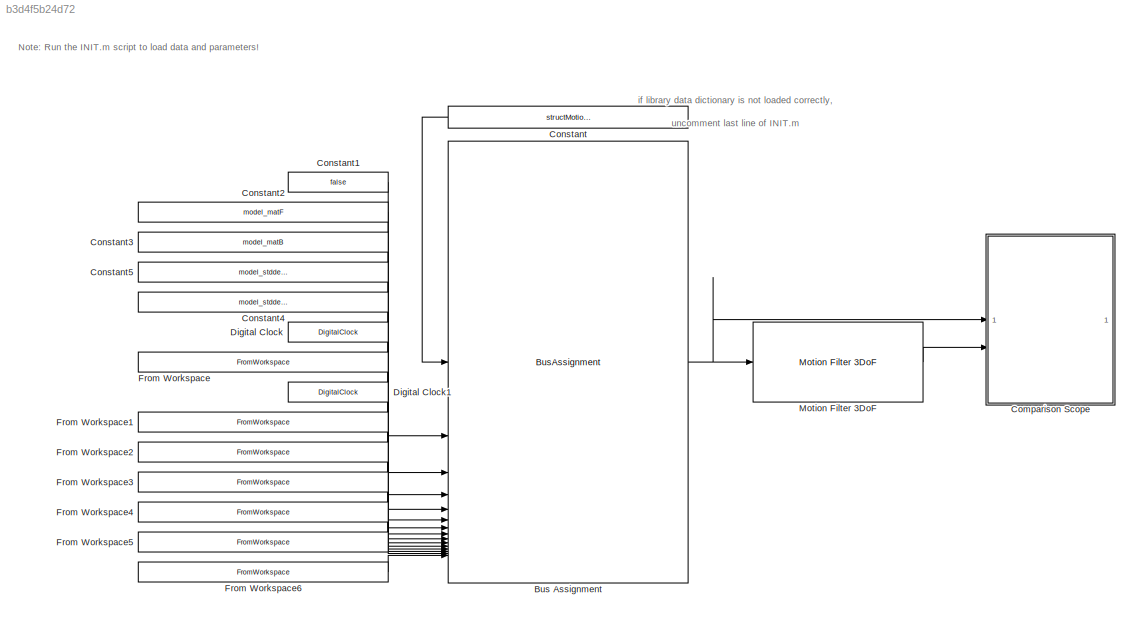
MODEL slx_b3d4f5b24d72
KIND model
CONFIG AbsTol = auto
CONFIG EnableMultiTasking = on
CONFIG FixedStep = 0.01
CONFIG MaxStep = auto
CONFIG MinStep = auto
CONFIG RelTol = 1e-3
CONFIG SampleTimeConstraint = Unconstrained
CONFIG SolverName = FixedStepAuto
CONFIG StartTime = 0.0
CONFIG StopTime = 180
BLOCK [BusAssignment] Bus Assignment
  AssignedSignals = reset,model.matF,model.matB,stddevModel.velocityUVR,stddevModel.externalXYN,input.timestamp,input.XYN,measurement.timestamp,measurement.positionLLA,measurement.orientationYaw,measurement.velocityUVR,stddevMeasurement.positionNorthEast,stddevMeasurement.orientationYaw,stddevMeasurement.velocityUVR
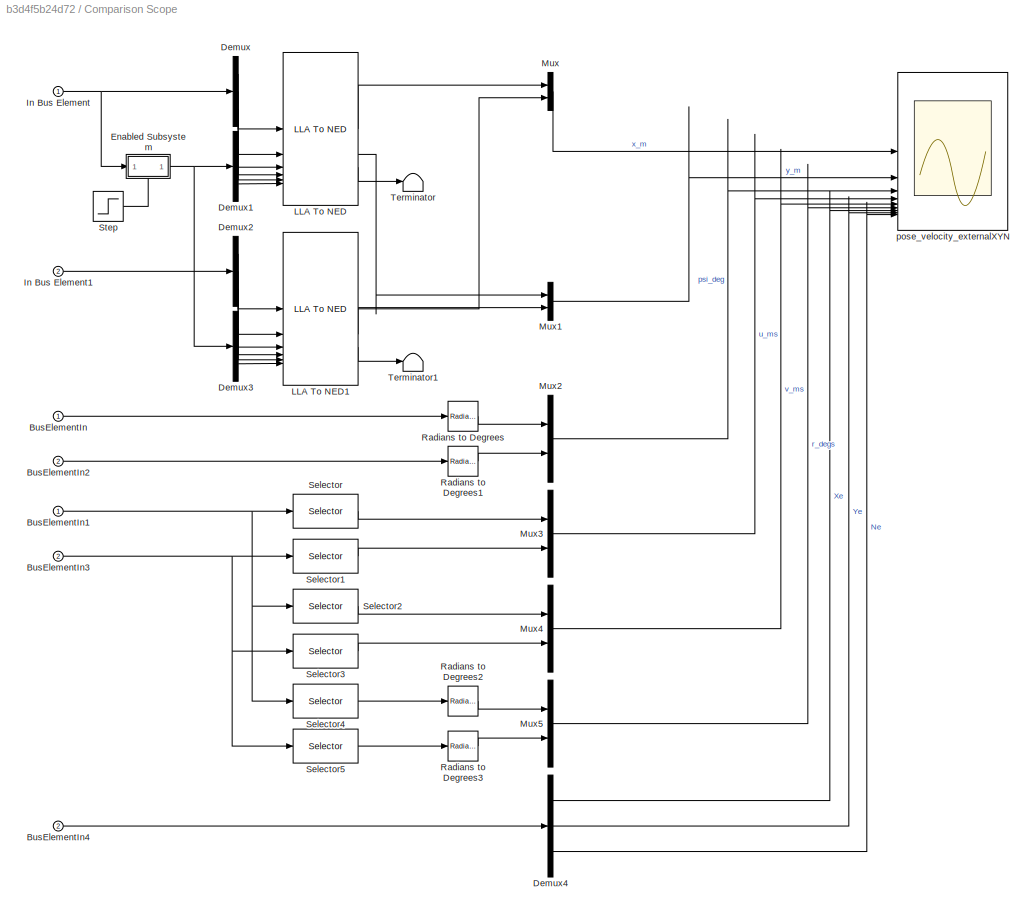
BLOCK [SubSystem] Comparison Scope
BLOCK [Inport] Comparison Scope/BusElementIn
BLOCK [Inport] Comparison Scope/BusElementIn1
BLOCK [Inport] Comparison Scope/BusElementIn2
  Port = 2
BLOCK [Inport] Comparison Scope/BusElementIn3
  Port = 2
BLOCK [Inport] Comparison Scope/BusElementIn4
  Port = 2
BLOCK [Demux] Comparison Scope/Demux
  Outputs = 3
BLOCK [Demux] Comparison Scope/Demux1
  Outputs = 3
BLOCK [Demux] Comparison Scope/Demux2
  Outputs = 3
BLOCK [Demux] Comparison Scope/Demux3
  Outputs = 3
BLOCK [Demux] Comparison Scope/Demux4
  Outputs = 3
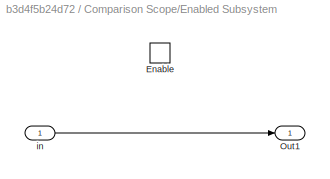
BLOCK [SubSystem] Comparison Scope/Enabled Subsystem
  NameLocation = top
  TreatAsAtomicUnit = on
BLOCK [EnablePort] Comparison Scope/Enabled Subsystem/Enable
BLOCK [Outport] Comparison Scope/Enabled Subsystem/Out1
BLOCK [Inport] Comparison Scope/Enabled Subsystem/in
BLOCK [Inport] Comparison Scope/In Bus Element
BLOCK [Inport] Comparison Scope/In Bus Element1
  Port = 2
BLOCK [Reference] Comparison Scope/LLA To NED  REF=AVE_Library/Essential/Transformation/LLA To NED
  SourceBlock = AVE_Library/Essential/Transformation/LLA To NED
  SourceProductName = AVE - Autonomous Vehicle Control Toolbox
BLOCK [Reference] Comparison Scope/LLA To NED1  REF=AVE_Library/Essential/Transformation/LLA To NED
  SourceBlock = AVE_Library/Essential/Transformation/LLA To NED
  SourceProductName = AVE - Autonomous Vehicle Control Toolbox
BLOCK [Mux] Comparison Scope/Mux
  DisplayOption = bar
  Inputs = 2
BLOCK [Mux] Comparison Scope/Mux1
  DisplayOption = bar
  Inputs = 2
BLOCK [Mux] Comparison Scope/Mux2
  DisplayOption = bar
  Inputs = 2
BLOCK [Mux] Comparison Scope/Mux3
  DisplayOption = bar
  Inputs = 2
BLOCK [Mux] Comparison Scope/Mux4
  DisplayOption = bar
  Inputs = 2
BLOCK [Mux] Comparison Scope/Mux5
  DisplayOption = bar
  Inputs = 2
BLOCK [Reference] Comparison Scope/Radians to Degrees  REF=simulink_extras/Transformations/Radians
to Degrees
  SourceBlock = simulink_extras/Transformations/Radians\nto Degrees
  SourceType = RadiansToDegrees
BLOCK [Reference] Comparison Scope/Radians to Degrees1  REF=simulink_extras/Transformations/Radians
to Degrees
  SourceBlock = simulink_extras/Transformations/Radians\nto Degrees
  SourceType = RadiansToDegrees
BLOCK [Reference] Comparison Scope/Radians to Degrees2  REF=simulink_extras/Transformations/Radians
to Degrees
  SourceBlock = simulink_extras/Transformations/Radians\nto Degrees
  SourceType = RadiansToDegrees
BLOCK [Reference] Comparison Scope/Radians to Degrees3  REF=simulink_extras/Transformations/Radians
to Degrees
  SourceBlock = simulink_extras/Transformations/Radians\nto Degrees
  SourceType = RadiansToDegrees
BLOCK [Selector] Comparison Scope/Selector
  IndexOptions = Index vector (dialog)
  Indices = 1
  InputPortWidth = 3
  OutputSizes = 1
BLOCK [Selector] Comparison Scope/Selector1
  IndexOptions = Index vector (dialog)
  Indices = 1
  InputPortWidth = 3
  OutputSizes = 1
BLOCK [Selector] Comparison Scope/Selector2
  IndexOptions = Index vector (dialog)
  Indices = 2
  InputPortWidth = 3
  OutputSizes = 1
BLOCK [Selector] Comparison Scope/Selector3
  IndexOptions = Index vector (dialog)
  Indices = 2
  InputPortWidth = 3
  OutputSizes = 1
BLOCK [Selector] Comparison Scope/Selector4
  IndexOptions = Index vector (dialog)
  Indices = 3
  InputPortWidth = 3
  OutputSizes = 1
BLOCK [Selector] Comparison Scope/Selector5
  IndexOptions = Index vector (dialog)
  Indices = 3
  InputPortWidth = 3
  OutputSizes = 1
BLOCK [Step] Comparison Scope/Step
  After = 0
  Before = 1
  SampleTime = 0.01
  Time = 0.01
BLOCK [Terminator] Comparison Scope/Terminator
BLOCK [Terminator] Comparison Scope/Terminator1
BLOCK [Scope] Comparison Scope/pose_velocity_externalXYN
  ActiveDisplayYMaximum = 5.2284363744473143
  ActiveDisplayYMinimum = -44.508029688328435
  Floating = off
  GraphicalSettings = {"AxesScalingProperties":{"AlignXAxis":"Center","AlignYAxis":"Center","AutoScaleXAxisLimits":false,"AxesScaling":"Manual","AxesScalingNumUpdates":10,"ExpandOnly":true,"ScaleAxesLimitsAtStop":false,"XAxisDataRange":100,"YAxisDataRange":80},"DisplayProperties":{"ColorOrder":["auto","auto","auto","auto","auto","auto","auto","auto","auto","auto","auto","auto","auto","auto","auto","auto","auto","auto",...<+6135ch>
  LayoutDimensionsString = [3,3]
  MultipleDisplayCache = [{"MaxYLimMag":44.508029688328435,"MaxYLimReal":5.2284363744473143,"MinYLimMag":0,"MinYLimReal":-44.508029688328435,"PlotAsMagnitudePhase":false,"ShowGrid":true,"ShowLegend":false,"Title":"%<SignalLabel>","YLabel":""},{"MaxYLimMag":174.49687586078647,"MaxYLimReal":174.49687586078647,"MinYLimMag":0,"MinYLimReal":-19.388541762309604,"PlotAsMagnitudePhase":false,"ShowGrid":true,"ShowLegend":false,"Ti...<+1584ch>
  NumInputPorts = 9
  ScopeFrameLocation = window
  WasSavedAsWebScope = on
  WindowPosition = [0.000000,37.000000,2560.000000,1366.000000,]
BLOCK [Constant] Constant
  OutDataTypeStr = Bus: busMotionFilter3DoFIn
  Value = structMotionFilter3DoFIn
BLOCK [Constant] Constant1
  OutDataTypeStr = boolean
  Value = false
BLOCK [Constant] Constant2
  Value = model_matF
BLOCK [Constant] Constant3
  Value = model_matB
BLOCK [Constant] Constant4
  Value = model_stddev_externalXYN
BLOCK [Constant] Constant5
  Value = model_stddev_velocityUVR
BLOCK [DigitalClock] Digital Clock
  SampleTime = 0.01
BLOCK [DigitalClock] Digital Clock1
  SampleTime = 0.01
BLOCK [FromWorkspace] From Workspace
  Interpolate = off
  OutputAfterFinalValue = Holding final value
  SampleTime = 0.01
  VariableName = data.input.XYN
BLOCK [FromWorkspace] From Workspace1
  Interpolate = off
  OutputAfterFinalValue = Holding final value
  SampleTime = 0.01
  VariableName = data.measurement.positionLLA
BLOCK [FromWorkspace] From Workspace2
  Interpolate = off
  OutputAfterFinalValue = Holding final value
  SampleTime = 0.01
  VariableName = data.measurement.orientationYaw
BLOCK [FromWorkspace] From Workspace3
  Interpolate = off
  OutputAfterFinalValue = Holding final value
  SampleTime = 0.01
  VariableName = data.measurement.velocityUVR
BLOCK [FromWorkspace] From Workspace4
  Interpolate = off
  OutputAfterFinalValue = Holding final value
  SampleTime = 0.01
  VariableName = data.measurement.stddevNorthEast
BLOCK [FromWorkspace] From Workspace5
  Interpolate = off
  OutputAfterFinalValue = Holding final value
  SampleTime = 0.01
  VariableName = data.measurement.stddevOrientationYaw
BLOCK [FromWorkspace] From Workspace6
  Interpolate = off
  OutputAfterFinalValue = Holding final value
  SampleTime = 0.01
  VariableName = data.measurement.stddevVelocityUVR
BLOCK [Reference] Motion Filter 3DoF  REF=MotionFilter_Library/Motion Filter 3DoF
  SourceBlock = MotionFilter_Library/Motion Filter 3DoF
ANNOTATION (root): if library data dictionary is not loaded correctly, uncomment last line of INIT.m
ANNOTATION (root): Note : Run the INIT.m script to load data and parameters!
NET Bus Assignment:1 -> Comparison Scope:1, Motion Filter 3DoF:1
NET Comparison Scope/BusElementIn1:1 -> Comparison Scope/Selector2:1, Comparison Scope/Selector4:1, Comparison Scope/Selector:1
LINE Comparison Scope/BusElementIn2:1 -> Comparison Scope/Radians to Degrees1:1
NET Comparison Scope/BusElementIn3:1 -> Comparison Scope/Selector1:1, Comparison Scope/Selector3:1, Comparison Scope/Selector5:1
LINE Comparison Scope/BusElementIn4:1 -> Comparison Scope/Demux4:1
LINE Comparison Scope/BusElementIn:1 -> Comparison Scope/Radians to Degrees:1
LINE Comparison Scope/Demux1:1 -> Comparison Scope/LLA To NED:4
LINE Comparison Scope/Demux1:2 -> Comparison Scope/LLA To NED:5
LINE Comparison Scope/Demux1:3 -> Comparison Scope/LLA To NED:6
LINE Comparison Scope/Demux2:1 -> Comparison Scope/LLA To NED1:1
LINE Comparison Scope/Demux2:2 -> Comparison Scope/LLA To NED1:2
LINE Comparison Scope/Demux2:3 -> Comparison Scope/LLA To NED1:3
LINE Comparison Scope/Demux3:1 -> Comparison Scope/LLA To NED1:4
LINE Comparison Scope/Demux3:2 -> Comparison Scope/LLA To NED1:5
LINE Comparison Scope/Demux3:3 -> Comparison Scope/LLA To NED1:6
LINE Comparison Scope/Demux4:1 -> Comparison Scope/pose_velocity_externalXYN:7
LINE Comparison Scope/Demux4:2 -> Comparison Scope/pose_velocity_externalXYN:8
LINE Comparison Scope/Demux4:3 -> Comparison Scope/pose_velocity_externalXYN:9
LINE Comparison Scope/Demux:1 -> Comparison Scope/LLA To NED:1
LINE Comparison Scope/Demux:2 -> Comparison Scope/LLA To NED:2
LINE Comparison Scope/Demux:3 -> Comparison Scope/LLA To NED:3
LINE Comparison Scope/Enabled Subsystem/in:1 -> Comparison Scope/Enabled Subsystem/Out1:1
NET Comparison Scope/Enabled Subsystem:1 -> Comparison Scope/Demux1:1, Comparison Scope/Demux3:1
LINE Comparison Scope/In Bus Element1:1 -> Comparison Scope/Demux2:1
NET Comparison Scope/In Bus Element:1 -> Comparison Scope/Demux:1, Comparison Scope/Enabled Subsystem:1
LINE Comparison Scope/LLA To NED1:1 -> Comparison Scope/Mux:2
LINE Comparison Scope/LLA To NED1:2 -> Comparison Scope/Mux1:2
LINE Comparison Scope/LLA To NED1:3 -> Comparison Scope/Terminator1:1
LINE Comparison Scope/LLA To NED:1 -> Comparison Scope/Mux:1
LINE Comparison Scope/LLA To NED:2 -> Comparison Scope/Mux1:1
LINE Comparison Scope/LLA To NED:3 -> Comparison Scope/Terminator:1
LINE Comparison Scope/Mux1:1 -> Comparison Scope/pose_velocity_externalXYN:2
LINE Comparison Scope/Mux2:1 -> Comparison Scope/pose_velocity_externalXYN:3
LINE Comparison Scope/Mux3:1 -> Comparison Scope/pose_velocity_externalXYN:4
LINE Comparison Scope/Mux4:1 -> Comparison Scope/pose_velocity_externalXYN:5
LINE Comparison Scope/Mux5:1 -> Comparison Scope/pose_velocity_externalXYN:6
LINE Comparison Scope/Mux:1 -> Comparison Scope/pose_velocity_externalXYN:1
LINE Comparison Scope/Radians to Degrees1:1 -> Comparison Scope/Mux2:2
LINE Comparison Scope/Radians to Degrees2:1 -> Comparison Scope/Mux5:1
LINE Comparison Scope/Radians to Degrees3:1 -> Comparison Scope/Mux5:2
LINE Comparison Scope/Radians to Degrees:1 -> Comparison Scope/Mux2:1
LINE Comparison Scope/Selector1:1 -> Comparison Scope/Mux3:2
LINE Comparison Scope/Selector2:1 -> Comparison Scope/Mux4:1
LINE Comparison Scope/Selector3:1 -> Comparison Scope/Mux4:2
LINE Comparison Scope/Selector4:1 -> Comparison Scope/Radians to Degrees2:1
LINE Comparison Scope/Selector5:1 -> Comparison Scope/Radians to Degrees3:1
LINE Comparison Scope/Selector:1 -> Comparison Scope/Mux3:1
LINE Comparison Scope/Step:1 -> Comparison Scope/Enabled Subsystem:enable
LINE Constant1:1 -> Bus Assignment:2
LINE Constant2:1 -> Bus Assignment:3
LINE Constant3:1 -> Bus Assignment:4
LINE Constant4:1 -> Bus Assignment:6
LINE Constant5:1 -> Bus Assignment:5
LINE Constant:1 -> Bus Assignment:1
LINE Digital Clock1:1 -> Bus Assignment:9
LINE Digital Clock:1 -> Bus Assignment:7
LINE From Workspace1:1 -> Bus Assignment:10
LINE From Workspace2:1 -> Bus Assignment:11
LINE From Workspace3:1 -> Bus Assignment:12
LINE From Workspace4:1 -> Bus Assignment:13
LINE From Workspace5:1 -> Bus Assignment:14
LINE From Workspace6:1 -> Bus Assignment:15
LINE From Workspace:1 -> Bus Assignment:8
LINE Motion Filter 3DoF:1 -> Comparison Scope:2
note: NET lines group one-source signal fan-out (src -> all destinations, sorted); 1:1 wires keep LINE
